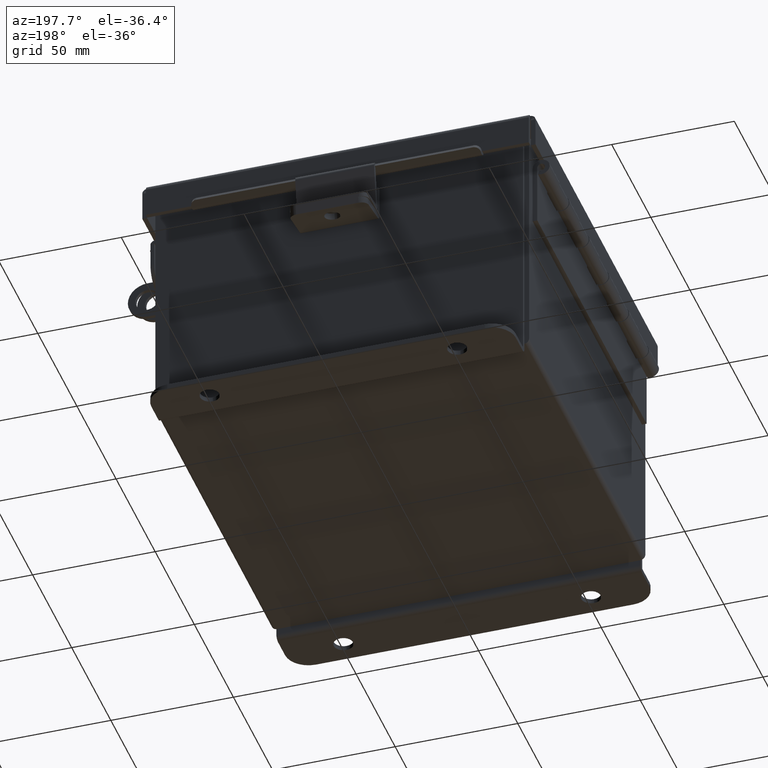
[diagram: clean part render]
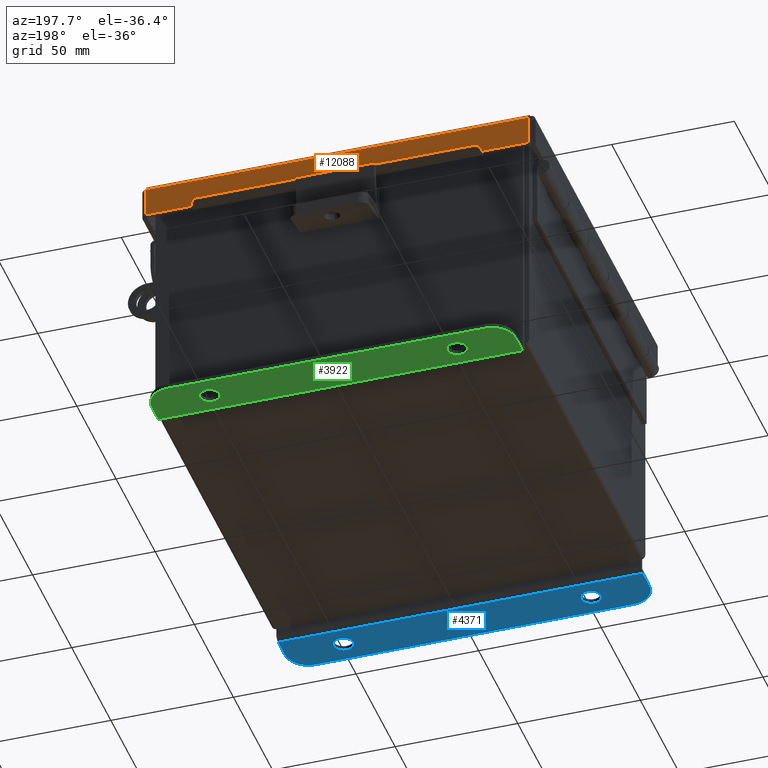
[diagram: same view with three faces highlighted in distinct colors, each labeled with its STEP entity id]
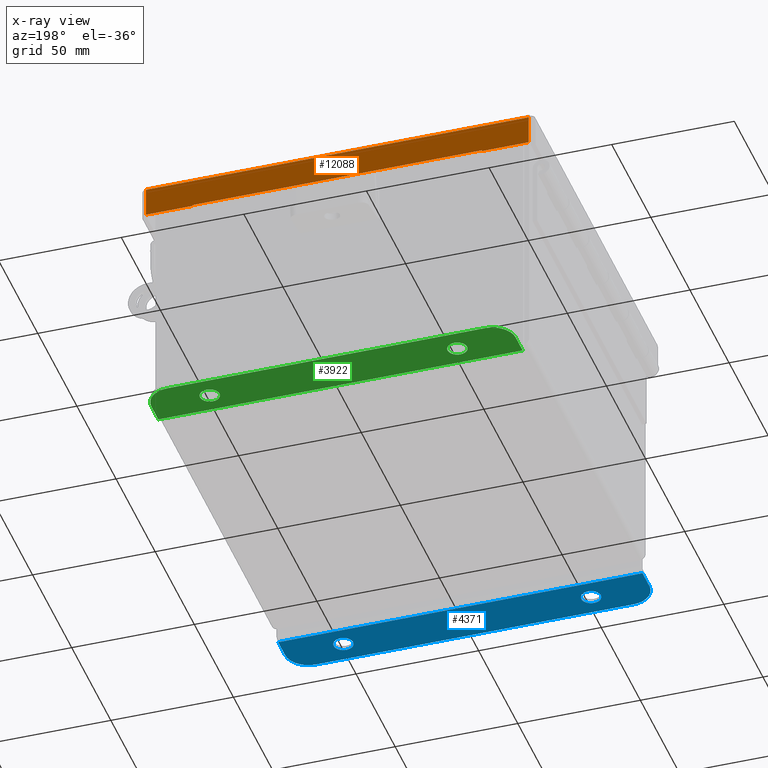
[diagram: x-ray of the same camera — body ghosted, the three highlighted faces saturated]
A machine part, auxiliary view with three faces highlighted in distinct colors.
The next image is the same camera in x-ray (body ghosted, the three faces saturated) — at least one of them is partly hidden behind the body in this view.
Their STEP definitions:

[orange] entity #12088 — the highlighted planar face has unit normal (-0, -1, -0).
#3 = CARTESIAN_POINT ( 'NONE',  ( -3.074478932188136100, 3.156250000000000000, -1.087734790185951700E-014 ) ) ;
#345 = DIRECTION ( 'NONE',  ( 1.000000000000000000, 0.0000000000000000000, 1.081919997490797700E-017 ) ) ;
#814 = VECTOR ( 'NONE', #9088, 39.37007874015748100 ) ;
#1096 = DIRECTION ( 'NONE',  ( 0.0000000000000000000, 3.363654414526077700E-015, 1.000000000000000000 ) ) ;
#1130 = VECTOR ( 'NONE', #3597, 39.37007874015748100 ) ;
#1212 = EDGE_LOOP ( 'NONE', ( #4152, #2540, #7370, #12683, #2721, #11433, #7924, #7199 ) ) ;
#1349 = CARTESIAN_POINT ( 'NONE',  ( 2.324478932188134700, 3.156250000000002700, 0.4717115427318805400 ) ) ;
#1434 = VERTEX_POINT ( 'NONE', #6379 ) ;
#1784 = CARTESIAN_POINT ( 'NONE',  ( 2.324478932188135200, 3.156250000000001800, 0.4872999999999997900 ) ) ;
#2176 = CARTESIAN_POINT ( 'NONE',  ( 1.293110781001012800E-017, 3.156250000000000000, -1.087734790185951700E-014 ) ) ;
#2272 = DIRECTION ( 'NONE',  ( 0.0000000000000000000, 3.504962610060573200E-014, -1.000000000000000000 ) ) ;
#2303 = LINE ( 'NONE', #2473, #4874 ) ;
#2473 = CARTESIAN_POINT ( 'NONE',  ( 7.658911662237355500E-018, 3.156250000000001800, 0.4872999999999997900 ) ) ;
#2540 = ORIENTED_EDGE ( 'NONE', *, *, #12328, .T. ) ;
#2594 = EDGE_CURVE ( 'NONE', #4556, #3349, #10823, .T. ) ;
#2721 = ORIENTED_EDGE ( 'NONE', *, *, #13066, .T. ) ;
#3215 = CARTESIAN_POINT ( 'NONE',  ( -2.324478932188136100, 3.156250000000001800, 0.4872999999999997900 ) ) ;
#3229 = VECTOR ( 'NONE', #2272, 39.37007874015748100 ) ;
#3273 = DIRECTION ( 'NONE',  ( 0.0000000000000000000, -3.363654414526077700E-015, -1.000000000000000000 ) ) ;
#3349 = VERTEX_POINT ( 'NONE', #6634 ) ;
#3504 = LINE ( 'NONE', #5122, #9361 ) ;
#3519 = VECTOR ( 'NONE', #5348, 39.37007874015748100 ) ;
#3597 = DIRECTION ( 'NONE',  ( -7.009925220121116200E-014, -7.009925220121116200E-014, 1.000000000000000000 ) ) ;
#3726 = VERTEX_POINT ( 'NONE', #3215 ) ;
#3821 = EDGE_CURVE ( 'NONE', #13010, #5408, #14218, .T. ) ;
#3974 = EDGE_CURVE ( 'NONE', #5408, #13484, #4074, .T. ) ;
#4074 = LINE ( 'NONE', #1349, #814 ) ;
#4152 = ORIENTED_EDGE ( 'NONE', *, *, #3821, .F. ) ;
#4237 = CARTESIAN_POINT ( 'NONE',  ( 3.074478932188135200, 3.156250000000000000, -2.512649847650985800E-016 ) ) ;
#4556 = VERTEX_POINT ( 'NONE', #14198 ) ;
#4833 = CARTESIAN_POINT ( 'NONE',  ( 3.156249999999998200, 3.156250000000000000, 0.01299999999999986400 ) ) ;
#4874 = VECTOR ( 'NONE', #345, 39.37007874015748100 ) ;
#5122 = CARTESIAN_POINT ( 'NONE',  ( 7.658911662237355500E-018, 3.156250000000001800, 0.4872999999999997900 ) ) ;
#5348 = DIRECTION ( 'NONE',  ( -0.0000000000000000000, 3.363654414526077700E-015, 1.000000000000000000 ) ) ;
#5361 = LINE ( 'NONE', #3, #7945 ) ;
#5408 = VERTEX_POINT ( 'NONE', #7358 ) ;
#6228 = DIRECTION ( 'NONE',  ( 1.000000000000000000, 0.0000000000000000000, 1.081919997490797700E-017 ) ) ;
#6379 = CARTESIAN_POINT ( 'NONE',  ( -3.074478932188136100, 3.156250000000001800, 0.4872999999999997300 ) ) ;
#6445 = LINE ( 'NONE', #4237, #3519 ) ;
#6634 = CARTESIAN_POINT ( 'NONE',  ( 3.074478932188135200, 3.156250000000000000, 0.01299999999999985900 ) ) ;
#6881 = CARTESIAN_POINT ( 'NONE',  ( -2.324478932188135200, 3.156250000000002700, 0.4717115427318805400 ) ) ;
#7016 = EDGE_CURVE ( 'NONE', #13484, #3726, #12817, .T. ) ;
#7199 = ORIENTED_EDGE ( 'NONE', *, *, #3974, .F. ) ;
#7358 = CARTESIAN_POINT ( 'NONE',  ( 2.324478932188135200, 3.156250000000001800, 0.4717115427318805400 ) ) ;
#7370 = ORIENTED_EDGE ( 'NONE', *, *, #7825, .F. ) ;
#7825 = EDGE_CURVE ( 'NONE', #3349, #8648, #6445, .T. ) ;
#7924 = ORIENTED_EDGE ( 'NONE', *, *, #7016, .F. ) ;
#7945 = VECTOR ( 'NONE', #1096, 39.37007874015748100 ) ;
#8648 = VERTEX_POINT ( 'NONE', #10537 ) ;
#9088 = DIRECTION ( 'NONE',  ( -1.000000000000000000, -0.0000000000000000000, -0.0000000000000000000 ) ) ;
#9313 = EDGE_CURVE ( 'NONE', #1434, #3726, #3504, .T. ) ;
#9361 = VECTOR ( 'NONE', #6228, 39.37007874015748100 ) ;
#9866 = DIRECTION ( 'NONE',  ( -3.639204975723964100E-032, -1.000000000000000000, 3.363654414526077700E-015 ) ) ;
#10293 = DIRECTION ( 'NONE',  ( 1.000000000000000000, -3.639204975723964100E-032, 1.189815042988946500E-046 ) ) ;
#10471 = VECTOR ( 'NONE', #10293, 39.37007874015748100 ) ;
#10537 = CARTESIAN_POINT ( 'NONE',  ( 3.074478932188135200, 3.156250000000001800, 0.4872999999999997900 ) ) ;
#10823 = LINE ( 'NONE', #4833, #10471 ) ;
#10908 = PLANE ( 'NONE',  #11914 ) ;
#11433 = ORIENTED_EDGE ( 'NONE', *, *, #9313, .T. ) ;
#11914 = AXIS2_PLACEMENT_3D ( 'NONE', #2176, #9866, #3273 ) ;
#12088 = ADVANCED_FACE ( 'NONE', ( #12761 ), #10908, .F. ) ;
#12328 = EDGE_CURVE ( 'NONE', #13010, #8648, #2303, .T. ) ;
#12683 = ORIENTED_EDGE ( 'NONE', *, *, #2594, .F. ) ;
#12715 = CARTESIAN_POINT ( 'NONE',  ( -2.324478932188135200, 3.156250000000001800, 0.4717115427318805400 ) ) ;
#12761 = FACE_OUTER_BOUND ( 'NONE', #1212, .T. ) ;
#12817 = LINE ( 'NONE', #6881, #1130 ) ;
#13010 = VERTEX_POINT ( 'NONE', #1784 ) ;
#13066 = EDGE_CURVE ( 'NONE', #4556, #1434, #5361, .T. ) ;
#13149 = CARTESIAN_POINT ( 'NONE',  ( 2.324478932188135200, 3.156250000000002200, 0.4872999999999999000 ) ) ;
#13484 = VERTEX_POINT ( 'NONE', #12715 ) ;
#14198 = CARTESIAN_POINT ( 'NONE',  ( -3.074478932188136100, 3.156250000000000000, 0.01299999999999986400 ) ) ;
#14218 = LINE ( 'NONE', #13149, #3229 ) ;

[blue] entity #4371 — the highlighted planar face has unit normal (0, -0, 1).
#16 = VERTEX_POINT ( 'NONE', #8395 ) ;
#193 = EDGE_LOOP ( 'NONE', ( #12706, #2879, #5534, #964, #9809, #3816 ) ) ;
#225 = DIRECTION ( 'NONE',  ( 0.0000000000000000000, -3.362274453740631800E-015, -1.000000000000000000 ) ) ;
#520 = LINE ( 'NONE', #2864, #8587 ) ;
#947 = DIRECTION ( 'NONE',  ( 0.0000000000000000000, 1.000000000000000000, -3.502369222646487000E-015 ) ) ;
#964 = ORIENTED_EDGE ( 'NONE', *, *, #12527, .T. ) ;
#1251 = LINE ( 'NONE', #5037, #12593 ) ;
#1295 = EDGE_CURVE ( 'NONE', #11425, #4407, #520, .T. ) ;
#1476 = CARTESIAN_POINT ( 'NONE',  ( 1.987799999999999100, 0.2068000000000039500, -2.186999999999999800 ) ) ;
#1494 = AXIS2_PLACEMENT_3D ( 'NONE', #3456, #11142, #4568 ) ;
#1505 = AXIS2_PLACEMENT_3D ( 'NONE', #6806, #225, #7921 ) ;
#1701 = AXIS2_PLACEMENT_3D ( 'NONE', #8973, #2406, #10086 ) ;
#1742 = DIRECTION ( 'NONE',  ( -3.994427860841588400E-031, -1.000000000000000000, 3.332425039709726500E-015 ) ) ;
#1743 = AXIS2_PLACEMENT_3D ( 'NONE', #1920, #9602, #3025 ) ;
#1768 = DIRECTION ( 'NONE',  ( 1.000000000000000000, 4.910036603141682400E-031, 0.0000000000000000000 ) ) ;
#1920 = CARTESIAN_POINT ( 'NONE',  ( -2.550299999999995100, 0.3628000000000002900, -2.187000000000000300 ) ) ;
#2011 = ORIENTED_EDGE ( 'NONE', *, *, #2015, .F. ) ;
#2015 = EDGE_CURVE ( 'NONE', #16, #11243, #7208, .T. ) ;
#2090 = CARTESIAN_POINT ( 'NONE',  ( 2.925299999999999600, 0.01300000000000393200, -2.186999999999998900 ) ) ;
#2406 = DIRECTION ( 'NONE',  ( 0.0000000000000000000, -3.362274453740631800E-015, -1.000000000000000000 ) ) ;
#2864 = CARTESIAN_POINT ( 'NONE',  ( 2.035385365534024800E-024, 0.7378000000000043400, -2.187000000000001600 ) ) ;
#2879 = ORIENTED_EDGE ( 'NONE', *, *, #6533, .T. ) ;
#2912 = AXIS2_PLACEMENT_3D ( 'NONE', #14106, #7539, #947 ) ;
#3025 = DIRECTION ( 'NONE',  ( 0.0000000000000000000, -1.000000000000000000, 3.642463991552350200E-015 ) ) ;
#3038 = CIRCLE ( 'NONE', #1743, 0.3750000000000000600 ) ;
#3135 = CARTESIAN_POINT ( 'NONE',  ( 2.925299999999999600, 0.01300000000000502500, -2.186999999999998900 ) ) ;
#3388 = VECTOR ( 'NONE', #4240, 39.37007874015748100 ) ;
#3456 = CARTESIAN_POINT ( 'NONE',  ( -1.987799999999997800, 0.3628000000000002900, -2.187000000000000300 ) ) ;
#3559 = ORIENTED_EDGE ( 'NONE', *, *, #10594, .F. ) ;
#3642 = ORIENTED_EDGE ( 'NONE', *, *, #4508, .F. ) ;
#3728 = LINE ( 'NONE', #3135, #3388 ) ;
#3816 = ORIENTED_EDGE ( 'NONE', *, *, #5998, .F. ) ;
#4240 = DIRECTION ( 'NONE',  ( 1.000000000000000000, 4.910036603141682400E-031, -0.0000000000000000000 ) ) ;
#4338 = CIRCLE ( 'NONE', #1505, 0.1560000000000001900 ) ;
#4371 = ADVANCED_FACE ( 'NONE', ( #8586, #11856, #11516 ), #12681, .F. ) ;
#4407 = VERTEX_POINT ( 'NONE', #6105 ) ;
#4508 = EDGE_CURVE ( 'NONE', #11243, #16, #7567, .T. ) ;
#4568 = DIRECTION ( 'NONE',  ( 0.0000000000000000000, 1.000000000000000000, -3.502369222646487000E-015 ) ) ;
#5026 = CIRCLE ( 'NONE', #1701, 0.1560000000000001900 ) ;
#5037 = CARTESIAN_POINT ( 'NONE',  ( 2.925299999999999600, -2.185478394931410600E-015, -2.186999999999998900 ) ) ;
#5160 = VERTEX_POINT ( 'NONE', #6895 ) ;
#5534 = ORIENTED_EDGE ( 'NONE', *, *, #1295, .T. ) ;
#5998 = EDGE_CURVE ( 'NONE', #10329, #6005, #3728, .T. ) ;
#6005 = VERTEX_POINT ( 'NONE', #2090 ) ;
#6105 = CARTESIAN_POINT ( 'NONE',  ( 2.550300000000003600, 0.7378000000000043400, -2.187000000000001600 ) ) ;
#6453 = DIRECTION ( 'NONE',  ( -0.0000000000000000000, -3.332425039709726500E-015, -1.000000000000000000 ) ) ;
#6533 = EDGE_CURVE ( 'NONE', #10982, #11425, #3038, .T. ) ;
#6806 = CARTESIAN_POINT ( 'NONE',  ( 1.987800000000001300, 0.3628000000000041200, -2.187000000000000300 ) ) ;
#6895 = CARTESIAN_POINT ( 'NONE',  ( 1.987800000000001300, 0.5188000000000042600, -2.187000000000000700 ) ) ;
#6951 = EDGE_CURVE ( 'NONE', #10329, #10982, #13157, .T. ) ;
#7191 = CARTESIAN_POINT ( 'NONE',  ( -2.550299999999995100, 0.7378000000000000100, -2.187000000000001600 ) ) ;
#7208 = CIRCLE ( 'NONE', #1494, 0.1560000000000001900 ) ;
#7539 = DIRECTION ( 'NONE',  ( 0.0000000000000000000, -3.362274453740631800E-015, -1.000000000000000000 ) ) ;
#7567 = CIRCLE ( 'NONE', #2912, 0.1560000000000001900 ) ;
#7787 = ORIENTED_EDGE ( 'NONE', *, *, #11028, .F. ) ;
#7921 = DIRECTION ( 'NONE',  ( 0.0000000000000000000, 1.000000000000000000, -3.502369222646487000E-015 ) ) ;
#8303 = DIRECTION ( 'NONE',  ( -1.555753819465285400E-061, 3.332425039709726500E-015, 1.000000000000000000 ) ) ;
#8336 = CARTESIAN_POINT ( 'NONE',  ( -2.925300000000000000, 0.01300000000000065300, -2.186999999999998900 ) ) ;
#8395 = CARTESIAN_POINT ( 'NONE',  ( -1.987799999999997800, 0.5188000000000004800, -2.187000000000000700 ) ) ;
#8586 = FACE_BOUND ( 'NONE', #12354, .T. ) ;
#8587 = VECTOR ( 'NONE', #1768, 39.37007874015748100 ) ;
#8686 = VERTEX_POINT ( 'NONE', #11749 ) ;
#8973 = CARTESIAN_POINT ( 'NONE',  ( 1.987800000000001300, 0.3628000000000041200, -2.187000000000000300 ) ) ;
#9367 = EDGE_LOOP ( 'NONE', ( #7787, #3559 ) ) ;
#9448 = DIRECTION ( 'NONE',  ( -3.994427860841574400E-031, -1.000000000000000000, 3.332425039709726500E-015 ) ) ;
#9602 = DIRECTION ( 'NONE',  ( -0.0000000000000000000, -3.332425039709726500E-015, -1.000000000000000000 ) ) ;
#9809 = ORIENTED_EDGE ( 'NONE', *, *, #10336, .T. ) ;
#9915 = CARTESIAN_POINT ( 'NONE',  ( -2.925299999999996500, 0.3628000000000002900, -2.187000000000000300 ) ) ;
#10086 = DIRECTION ( 'NONE',  ( 0.0000000000000000000, 1.000000000000000000, -3.502369222646487000E-015 ) ) ;
#10247 = VECTOR ( 'NONE', #12312, 39.37007874015748100 ) ;
#10329 = VERTEX_POINT ( 'NONE', #8336 ) ;
#10336 = EDGE_CURVE ( 'NONE', #8686, #6005, #1251, .T. ) ;
#10594 = EDGE_CURVE ( 'NONE', #11169, #5160, #4338, .T. ) ;
#10982 = VERTEX_POINT ( 'NONE', #9915 ) ;
#11028 = EDGE_CURVE ( 'NONE', #5160, #11169, #5026, .T. ) ;
#11142 = DIRECTION ( 'NONE',  ( 0.0000000000000000000, -3.362274453740631800E-015, -1.000000000000000000 ) ) ;
#11169 = VERTEX_POINT ( 'NONE', #1476 ) ;
#11243 = VERTEX_POINT ( 'NONE', #11420 ) ;
#11420 = CARTESIAN_POINT ( 'NONE',  ( -1.987800000000000000, 0.2068000000000001200, -2.186999999999999800 ) ) ;
#11425 = VERTEX_POINT ( 'NONE', #7191 ) ;
#11516 = FACE_OUTER_BOUND ( 'NONE', #193, .T. ) ;
#11646 = AXIS2_PLACEMENT_3D ( 'NONE', #13021, #6453, #14121 ) ;
#11749 = CARTESIAN_POINT ( 'NONE',  ( 2.925300000000004000, 0.3628000000000041200, -2.187000000000000300 ) ) ;
#11856 = FACE_BOUND ( 'NONE', #9367, .T. ) ;
#11899 = CIRCLE ( 'NONE', #11646, 0.3750000000000000600 ) ;
#12312 = DIRECTION ( 'NONE',  ( 3.994427860841574400E-031, 1.000000000000000000, -3.332425039709726500E-015 ) ) ;
#12354 = EDGE_LOOP ( 'NONE', ( #2011, #3642 ) ) ;
#12527 = EDGE_CURVE ( 'NONE', #4407, #8686, #11899, .T. ) ;
#12593 = VECTOR ( 'NONE', #9448, 39.37007874015748100 ) ;
#12681 = PLANE ( 'NONE',  #12749 ) ;
#12706 = ORIENTED_EDGE ( 'NONE', *, *, #6951, .T. ) ;
#12749 = AXIS2_PLACEMENT_3D ( 'NONE', #13780, #8303, #1742 ) ;
#13021 = CARTESIAN_POINT ( 'NONE',  ( 2.550300000000003600, 0.3628000000000041200, -2.187000000000000300 ) ) ;
#13157 = LINE ( 'NONE', #13349, #10247 ) ;
#13349 = CARTESIAN_POINT ( 'NONE',  ( -2.925300000000000500, -6.556435184794231700E-015, -2.186999999999998900 ) ) ;
#13780 = CARTESIAN_POINT ( 'NONE',  ( 0.0000000000000000000, -2.731847993664263200E-015, -2.186999999999998900 ) ) ;
#14106 = CARTESIAN_POINT ( 'NONE',  ( -1.987799999999997800, 0.3628000000000002900, -2.187000000000000300 ) ) ;
#14121 = DIRECTION ( 'NONE',  ( 0.0000000000000000000, -1.000000000000000000, 3.642463991552350200E-015 ) ) ;

[green] entity #3922 — the highlighted planar face has unit normal (0, 0, 1).
#136 = DIRECTION ( 'NONE',  ( 0.0000000000000000000, -1.000000000000000000, 3.642463991552350200E-015 ) ) ;
#157 = ORIENTED_EDGE ( 'NONE', *, *, #9940, .F. ) ;
#195 = EDGE_CURVE ( 'NONE', #9612, #1529, #11052, .T. ) ;
#243 = DIRECTION ( 'NONE',  ( 0.0000000000000000000, -1.000000000000000000, 3.332425039709726500E-015 ) ) ;
#427 = ORIENTED_EDGE ( 'NONE', *, *, #4287, .T. ) ;
#1075 = DIRECTION ( 'NONE',  ( 0.0000000000000000000, 1.000000000000000000, -3.502369222646487000E-015 ) ) ;
#1151 = CARTESIAN_POINT ( 'NONE',  ( -1.987800000000000700, 0.5187999999999999300, -2.187000000000001200 ) ) ;
#1507 = FACE_OUTER_BOUND ( 'NONE', #4624, .T. ) ;
#1529 = VERTEX_POINT ( 'NONE', #3196 ) ;
#1579 = DIRECTION ( 'NONE',  ( 0.0000000000000000000, 1.000000000000000000, -3.332425039709726500E-015 ) ) ;
#1853 = FACE_BOUND ( 'NONE', #11291, .T. ) ;
#1949 = VECTOR ( 'NONE', #11458, 39.37007874015748100 ) ;
#2123 = VECTOR ( 'NONE', #12197, 39.37007874015748100 ) ;
#2225 = EDGE_CURVE ( 'NONE', #4510, #12152, #7368, .T. ) ;
#2426 = CARTESIAN_POINT ( 'NONE',  ( 1.987799999999999100, 0.3627999999999997300, -2.187000000000000300 ) ) ;
#2564 = CIRCLE ( 'NONE', #4773, 0.3750000000000000600 ) ;
#2585 = DIRECTION ( 'NONE',  ( 0.0000000000000000000, -3.702694488566362300E-015, -1.000000000000000000 ) ) ;
#2867 = CARTESIAN_POINT ( 'NONE',  ( 1.987799999999999100, 0.5187999999999999300, -2.187000000000001200 ) ) ;
#3196 = CARTESIAN_POINT ( 'NONE',  ( 2.925299999999999100, 0.01299999999999956100, -2.186999999999998900 ) ) ;
#3337 = CIRCLE ( 'NONE', #12788, 0.1560000000000001900 ) ;
#3410 = CARTESIAN_POINT ( 'NONE',  ( 2.925299999999999100, 0.3627999999999997300, -2.187000000000000300 ) ) ;
#3503 = CARTESIAN_POINT ( 'NONE',  ( 2.550299999999999100, 0.3627999999999997300, -2.187000000000000300 ) ) ;
#3509 = DIRECTION ( 'NONE',  ( 0.0000000000000000000, 1.000000000000000000, -3.502369222646487000E-015 ) ) ;
#3536 = ORIENTED_EDGE ( 'NONE', *, *, #2225, .F. ) ;
#3828 = AXIS2_PLACEMENT_3D ( 'NONE', #13293, #6728, #136 ) ;
#3922 = ADVANCED_FACE ( 'NONE', ( #1853, #4427, #1507 ), #10095, .F. ) ;
#4095 = EDGE_LOOP ( 'NONE', ( #8474, #5282 ) ) ;
#4287 = EDGE_CURVE ( 'NONE', #12647, #8764, #8417, .T. ) ;
#4357 = AXIS2_PLACEMENT_3D ( 'NONE', #12205, #7666, #1075 ) ;
#4427 = FACE_BOUND ( 'NONE', #4095, .T. ) ;
#4510 = VERTEX_POINT ( 'NONE', #13002 ) ;
#4622 = DIRECTION ( 'NONE',  ( 0.0000000000000000000, -1.000000000000000000, 3.642463991552350200E-015 ) ) ;
#4624 = EDGE_LOOP ( 'NONE', ( #12498, #6464, #12200, #157, #12103, #427 ) ) ;
#4773 = AXIS2_PLACEMENT_3D ( 'NONE', #3503, #11197, #4622 ) ;
#4993 = CARTESIAN_POINT ( 'NONE',  ( 0.0000000000000000000, 0.7378000000000000100, -2.187000000000001600 ) ) ;
#5196 = CARTESIAN_POINT ( 'NONE',  ( 1.987799999999999100, 0.2067999999999996000, -2.186999999999999800 ) ) ;
#5282 = ORIENTED_EDGE ( 'NONE', *, *, #12732, .F. ) ;
#5582 = CARTESIAN_POINT ( 'NONE',  ( 2.550299999999999100, 0.7378000000000000100, -2.187000000000001600 ) ) ;
#5614 = CARTESIAN_POINT ( 'NONE',  ( 2.925299999999999100, 0.01300000000000010700, -2.186999999999998900 ) ) ;
#5778 = EDGE_CURVE ( 'NONE', #6865, #9612, #2564, .T. ) ;
#5827 = CARTESIAN_POINT ( 'NONE',  ( -1.987800000000000700, 0.3627999999999997300, -2.187000000000000300 ) ) ;
#6084 = DIRECTION ( 'NONE',  ( 1.000000000000000000, 0.0000000000000000000, -0.0000000000000000000 ) ) ;
#6464 = ORIENTED_EDGE ( 'NONE', *, *, #5778, .T. ) ;
#6566 = CIRCLE ( 'NONE', #7696, 0.1560000000000001900 ) ;
#6728 = DIRECTION ( 'NONE',  ( -0.0000000000000000000, -3.332425039709726100E-015, -1.000000000000000000 ) ) ;
#6821 = DIRECTION ( 'NONE',  ( 0.0000000000000000000, 3.332425039709726500E-015, 1.000000000000000000 ) ) ;
#6865 = VERTEX_POINT ( 'NONE', #5582 ) ;
#6923 = DIRECTION ( 'NONE',  ( 0.0000000000000000000, 1.000000000000000000, -3.502369222646487000E-015 ) ) ;
#7368 = CIRCLE ( 'NONE', #4357, 0.1560000000000001900 ) ;
#7383 = VERTEX_POINT ( 'NONE', #5196 ) ;
#7444 = VECTOR ( 'NONE', #6084, 39.37007874015748100 ) ;
#7627 = LINE ( 'NONE', #5614, #2123 ) ;
#7666 = DIRECTION ( 'NONE',  ( 0.0000000000000000000, -3.702694488566362300E-015, -1.000000000000000000 ) ) ;
#7696 = AXIS2_PLACEMENT_3D ( 'NONE', #2426, #10106, #3509 ) ;
#8235 = CARTESIAN_POINT ( 'NONE',  ( -2.550300000000000900, 0.7378000000000000100, -2.187000000000001600 ) ) ;
#8417 = CIRCLE ( 'NONE', #3828, 0.3750000000000000600 ) ;
#8448 = CIRCLE ( 'NONE', #12110, 0.1560000000000001900 ) ;
#8474 = ORIENTED_EDGE ( 'NONE', *, *, #9061, .F. ) ;
#8764 = VERTEX_POINT ( 'NONE', #8235 ) ;
#8854 = CARTESIAN_POINT ( 'NONE',  ( -2.925300000000000500, 0.01300000000000010700, -2.186999999999998900 ) ) ;
#8986 = CARTESIAN_POINT ( 'NONE',  ( 0.0000000000000000000, -6.556435184794231700E-015, -2.186999999999998900 ) ) ;
#9061 = EDGE_CURVE ( 'NONE', #13512, #7383, #3337, .T. ) ;
#9159 = CARTESIAN_POINT ( 'NONE',  ( 1.987799999999999100, 0.3627999999999997300, -2.187000000000000300 ) ) ;
#9299 = CARTESIAN_POINT ( 'NONE',  ( 2.925299999999999100, -6.556435184794231700E-015, -2.186999999999998900 ) ) ;
#9612 = VERTEX_POINT ( 'NONE', #3410 ) ;
#9940 = EDGE_CURVE ( 'NONE', #11764, #1529, #7627, .T. ) ;
#10095 = PLANE ( 'NONE',  #11830 ) ;
#10106 = DIRECTION ( 'NONE',  ( 0.0000000000000000000, -3.702694488566362300E-015, -1.000000000000000000 ) ) ;
#10176 = EDGE_CURVE ( 'NONE', #11764, #12647, #11403, .T. ) ;
#10255 = DIRECTION ( 'NONE',  ( 0.0000000000000000000, 1.000000000000000000, -3.502369222646487000E-015 ) ) ;
#10267 = EDGE_CURVE ( 'NONE', #8764, #6865, #10364, .T. ) ;
#10363 = CARTESIAN_POINT ( 'NONE',  ( -2.925300000000001300, -6.556435184794231700E-015, -2.186999999999998900 ) ) ;
#10364 = LINE ( 'NONE', #4993, #7444 ) ;
#11017 = ORIENTED_EDGE ( 'NONE', *, *, #12808, .F. ) ;
#11052 = LINE ( 'NONE', #9299, #1949 ) ;
#11197 = DIRECTION ( 'NONE',  ( -0.0000000000000000000, -3.332425039709726100E-015, -1.000000000000000000 ) ) ;
#11291 = EDGE_LOOP ( 'NONE', ( #11017, #3536 ) ) ;
#11403 = LINE ( 'NONE', #10363, #13968 ) ;
#11458 = DIRECTION ( 'NONE',  ( 0.0000000000000000000, -1.000000000000000000, 3.332425039709726500E-015 ) ) ;
#11764 = VERTEX_POINT ( 'NONE', #8854 ) ;
#11830 = AXIS2_PLACEMENT_3D ( 'NONE', #8986, #6821, #243 ) ;
#12103 = ORIENTED_EDGE ( 'NONE', *, *, #10176, .T. ) ;
#12110 = AXIS2_PLACEMENT_3D ( 'NONE', #5827, #13495, #6923 ) ;
#12118 = CARTESIAN_POINT ( 'NONE',  ( -2.925300000000001300, 0.3627999999999997300, -2.187000000000000300 ) ) ;
#12152 = VERTEX_POINT ( 'NONE', #1151 ) ;
#12197 = DIRECTION ( 'NONE',  ( 1.000000000000000000, 4.669346722839134300E-017, -1.556024793827568100E-031 ) ) ;
#12200 = ORIENTED_EDGE ( 'NONE', *, *, #195, .T. ) ;
#12205 = CARTESIAN_POINT ( 'NONE',  ( -1.987800000000000700, 0.3627999999999997300, -2.187000000000000300 ) ) ;
#12498 = ORIENTED_EDGE ( 'NONE', *, *, #10267, .T. ) ;
#12647 = VERTEX_POINT ( 'NONE', #12118 ) ;
#12732 = EDGE_CURVE ( 'NONE', #7383, #13512, #6566, .T. ) ;
#12788 = AXIS2_PLACEMENT_3D ( 'NONE', #9159, #2585, #10255 ) ;
#12808 = EDGE_CURVE ( 'NONE', #12152, #4510, #8448, .T. ) ;
#13002 = CARTESIAN_POINT ( 'NONE',  ( -1.987800000000000700, 0.2067999999999996000, -2.186999999999999800 ) ) ;
#13293 = CARTESIAN_POINT ( 'NONE',  ( -2.550300000000000900, 0.3627999999999997300, -2.187000000000000300 ) ) ;
#13495 = DIRECTION ( 'NONE',  ( 0.0000000000000000000, -3.702694488566362300E-015, -1.000000000000000000 ) ) ;
#13512 = VERTEX_POINT ( 'NONE', #2867 ) ;
#13968 = VECTOR ( 'NONE', #1579, 39.37007874015748100 ) ;